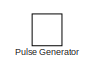
[diagram: root canvas - part 1/2, top left region]
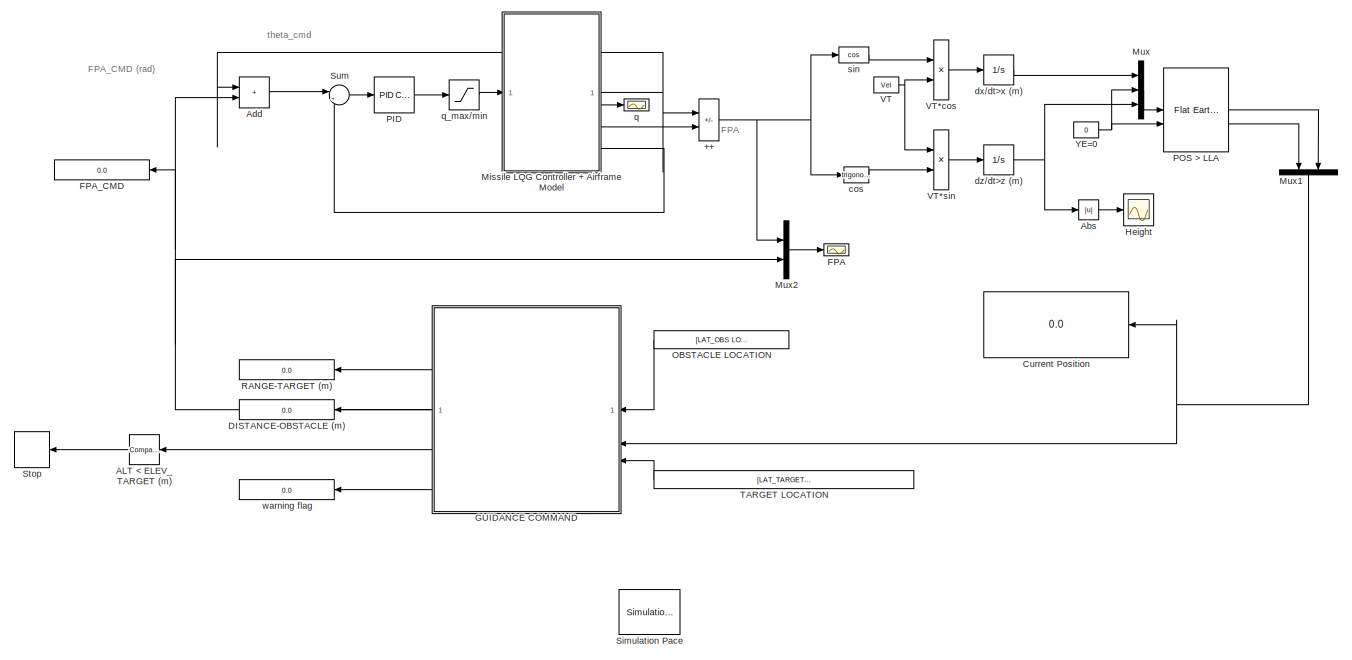
[diagram: root canvas - part 2/2, full width, middle band]
MODEL slx_c7881eeb886f
KIND model
CONFIG AbsTol = auto
CONFIG EnableMultiTasking = on
CONFIG FixedStep = .01
CONFIG MaxStep = auto
CONFIG MinStep = auto
CONFIG RelTol = 1e-3
CONFIG SampleTimeConstraint = Unconstrained
CONFIG SolverName = ode45
CONFIG StartTime = 0.0
CONFIG StopTime = Inf
BLOCK [Sum] ++
  IconShape = rectangular
  Inputs = -+
BLOCK [Reference] ALT < ELEV_TARGET (m)  REF=simulink/Logic and Bit
Operations/Compare
To Constant
  NameLocation = top
  SourceBlock = simulink/Logic and Bit\nOperations/Compare\nTo Constant
  SourceType = Compare To Constant
BLOCK [Abs] Abs
  SaturateOnIntegerOverflow = off
BLOCK [Sum] Add
  IconShape = rectangular
BLOCK [Display] Current Position
  Decimation = 1
  Format = long
  NameLocation = top
BLOCK [Display] DISTANCE-OBSTACLE (m)
  Decimation = 1
  NameLocation = top
BLOCK [Scope] FPA
  Floating = off
  NumInputPorts = 1
  ScopeSpecificationString = Simulink.scopes.TimeScopeBlockCfg('CurrentConfiguration', extmgr.ConfigurationSet(extmgr.Configuration('Core','General UI',true,'FigureColor',[0.313725490196078 0.313725490196078 0.313725490196078]),extmgr.Configuration('Core','Source UI',true),extmgr.Configuration('Sources','WiredSimulink',true,'DataLoggingVariableName','ScopeData4','DataLoggingSaveFormat','Array','DataLoggingDecimation','1','Dat...<+2910ch>
BLOCK [Display] FPA_CMD
  Decimation = 1
  NameLocation = top
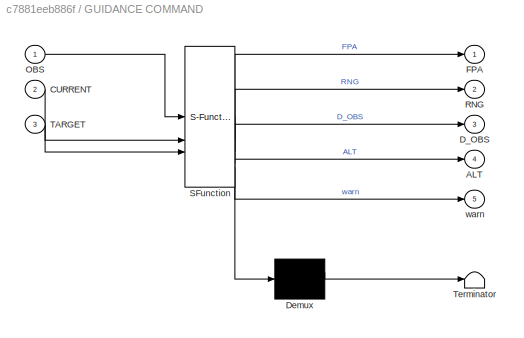
BLOCK [SubSystem] GUIDANCE COMMAND
  ErrorFcn = Stateflow.Translate.translate
  NameLocation = top
  PermitHierarchicalResolution = ExplicitOnly
  SFBlockType = MATLAB Function
  TreatAsAtomicUnit = on
BLOCK [Demux] GUIDANCE COMMAND/ Demux 
  Outputs = 1
BLOCK [S-Function] GUIDANCE COMMAND/ SFunction 
  EnableBusSupport = on
  FunctionName = sf_sfun
  PortCounts = [3 6]
  SFcnIsStateOwnerBlock = off
  SFunctionDeploymentMode = off
  Tag = Stateflow S-Function 1
BLOCK [Terminator] GUIDANCE COMMAND/ Terminator 
BLOCK [Outport] GUIDANCE COMMAND/ALT
  Port = 4
BLOCK [Inport] GUIDANCE COMMAND/CURRENT
  Port = 2
BLOCK [Outport] GUIDANCE COMMAND/D_OBS
  Port = 3
BLOCK [Outport] GUIDANCE COMMAND/FPA
BLOCK [Inport] GUIDANCE COMMAND/OBS
BLOCK [Outport] GUIDANCE COMMAND/RNG
  Port = 2
BLOCK [Inport] GUIDANCE COMMAND/TARGET
  Port = 3
BLOCK [Outport] GUIDANCE COMMAND/warn
  Port = 5
BLOCK [Scope] Height
  Floating = off
  NumInputPorts = 1
  ScopeSpecificationString = Simulink.scopes.TimeScopeBlockCfg('CurrentConfiguration', extmgr.ConfigurationSet(extmgr.Configuration('Core','General UI',true),extmgr.Configuration('Core','Source UI',true),extmgr.Configuration('Sources','WiredSimulink',true,'DataLoggingVariableName','ScopeData2'),extmgr.Configuration('Visuals','Time Domain',true,'SerializedDisplays',{struct('MinYLimReal','654.38257','MaxYLimReal','2060.5569','Y...<+1426ch>
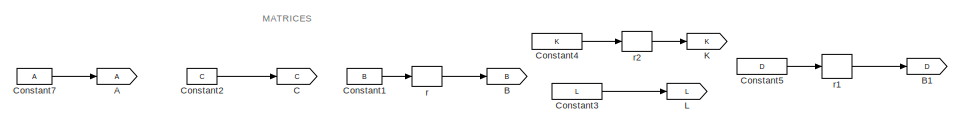
[diagram: Missile LQG Controller + Airframe Model - part 1/4, top center region]
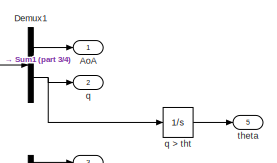
[diagram: Missile LQG Controller + Airframe Model - part 2/4, top right region]
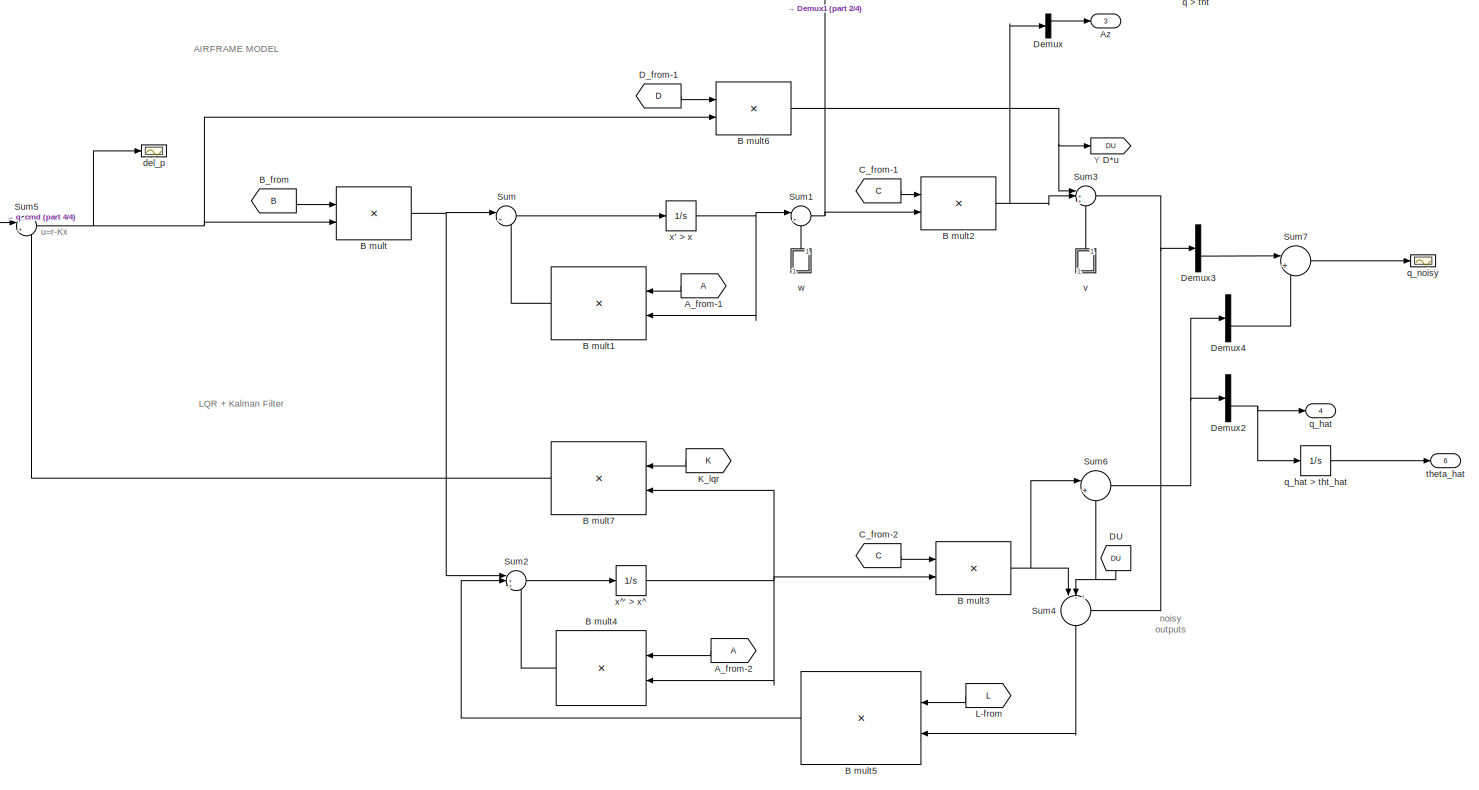
[diagram: Missile LQG Controller + Airframe Model - part 3/4, full width, middle band]
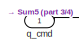
[diagram: Missile LQG Controller + Airframe Model - part 4/4, middle left region]
BLOCK [SubSystem] Missile LQG Controller + Airframe Model
BLOCK [Goto] Missile LQG Controller + Airframe Model/A
BLOCK [From] Missile LQG Controller + Airframe Model/A_from-1
BLOCK [From] Missile LQG Controller + Airframe Model/A_from-2
BLOCK [Outport] Missile LQG Controller + Airframe Model/AoA
BLOCK [Outport] Missile LQG Controller + Airframe Model/Az
  Port = 3
BLOCK [Goto] Missile LQG Controller + Airframe Model/B
  GotoTag = B
BLOCK [Product] Missile LQG Controller + Airframe Model/B mult
  Multiplication = Matrix(*)
  RndMeth = Zero
BLOCK [Product] Missile LQG Controller + Airframe Model/B mult1
  Multiplication = Matrix(*)
  NameLocation = top
  RndMeth = Zero
BLOCK [Product] Missile LQG Controller + Airframe Model/B mult2
  Multiplication = Matrix(*)
  RndMeth = Zero
BLOCK [Product] Missile LQG Controller + Airframe Model/B mult3
  Multiplication = Matrix(*)
  RndMeth = Zero
BLOCK [Product] Missile LQG Controller + Airframe Model/B mult4
  Multiplication = Matrix(*)
  NameLocation = top
  RndMeth = Zero
BLOCK [Product] Missile LQG Controller + Airframe Model/B mult5
  Multiplication = Matrix(*)
  NameLocation = top
  RndMeth = Zero
BLOCK [Product] Missile LQG Controller + Airframe Model/B mult6
  Multiplication = Matrix(*)
  RndMeth = Zero
BLOCK [Product] Missile LQG Controller + Airframe Model/B mult7
  Multiplication = Matrix(*)
  NameLocation = top
  RndMeth = Zero
BLOCK [Goto] Missile LQG Controller + Airframe Model/B1
  GotoTag = D
BLOCK [From] Missile LQG Controller + Airframe Model/B_from
  GotoTag = B
  NameLocation = top
BLOCK [Goto] Missile LQG Controller + Airframe Model/C
  GotoTag = C
BLOCK [From] Missile LQG Controller + Airframe Model/C_from-1
  GotoTag = C
  NameLocation = top
BLOCK [From] Missile LQG Controller + Airframe Model/C_from-2
  GotoTag = C
  NameLocation = top
BLOCK [Constant] Missile LQG Controller + Airframe Model/Constant1
  Value = B
BLOCK [Constant] Missile LQG Controller + Airframe Model/Constant2
  Value = C
BLOCK [Constant] Missile LQG Controller + Airframe Model/Constant3
  Value = L
BLOCK [Constant] Missile LQG Controller + Airframe Model/Constant4
  Value = K
BLOCK [Constant] Missile LQG Controller + Airframe Model/Constant5
  Value = D
BLOCK [Constant] Missile LQG Controller + Airframe Model/Constant7
  Value = A
BLOCK [Goto] Missile LQG Controller + Airframe Model/D*u
  GotoTag = DU
BLOCK [From] Missile LQG Controller + Airframe Model/DU
  GotoTag = DU
  NameLocation = right
BLOCK [From] Missile LQG Controller + Airframe Model/D_from-1
  GotoTag = D
  NameLocation = top
BLOCK [Demux] Missile LQG Controller + Airframe Model/Demux
  Outputs = 2
BLOCK [Demux] Missile LQG Controller + Airframe Model/Demux1
  Outputs = 2
BLOCK [Demux] Missile LQG Controller + Airframe Model/Demux2
  Outputs = 2
BLOCK [Demux] Missile LQG Controller + Airframe Model/Demux3
  Outputs = 2
BLOCK [Demux] Missile LQG Controller + Airframe Model/Demux4
  Outputs = 2
BLOCK [Goto] Missile LQG Controller + Airframe Model/K
  GotoTag = K
BLOCK [From] Missile LQG Controller + Airframe Model/K_lqr
  GotoTag = K
BLOCK [Goto] Missile LQG Controller + Airframe Model/L
  GotoTag = L
BLOCK [From] Missile LQG Controller + Airframe Model/L-from
  GotoTag = L
BLOCK [Sum] Missile LQG Controller + Airframe Model/Sum
  Inputs = |++
BLOCK [Sum] Missile LQG Controller + Airframe Model/Sum1
  Inputs = |++
BLOCK [Sum] Missile LQG Controller + Airframe Model/Sum2
  Inputs = |+++
BLOCK [Sum] Missile LQG Controller + Airframe Model/Sum3
  Inputs = |+++
BLOCK [Sum] Missile LQG Controller + Airframe Model/Sum4
  Inputs = |--+
  NameLocation = left
BLOCK [Sum] Missile LQG Controller + Airframe Model/Sum5
  Inputs = |+-
BLOCK [Sum] Missile LQG Controller + Airframe Model/Sum6
  Inputs = |++
BLOCK [Sum] Missile LQG Controller + Airframe Model/Sum7
  Inputs = |+-
BLOCK [Scope] Missile LQG Controller + Airframe Model/del_p
  Floating = off
  NumInputPorts = 1
  ScopeSpecificationString = C++SS(StrPVP('Location','[2465, 256, 3054, 659]'),StrPVP('Open','off'),MxPVP('AxesTitles',54,'struct(''axes1'',''%<SignalLabel>'')'),MxPVP('ScopeGraphics',57,'struct(''FigureColor'',''[0.313725490196078 0.313725490196078 0.313725490196078]'',''AxesColor'',''[0.247058823529412 0.247058823529412 0.247058823529412]'',''AxesTickColor'',''[1 1 1]'',''LineColors'',''[0 1 0;1 0 1;0 1 1;1 0 0;0 1 0;0 0 1]...<+283ch>
BLOCK [Outport] Missile LQG Controller + Airframe Model/q
  Port = 2
BLOCK [Integrator] Missile LQG Controller + Airframe Model/q > tht
BLOCK [Inport] Missile LQG Controller + Airframe Model/q_cmd
BLOCK [Outport] Missile LQG Controller + Airframe Model/q_hat
  Port = 4
BLOCK [Integrator] Missile LQG Controller + Airframe Model/q_hat > tht_hat
BLOCK [Scope] Missile LQG Controller + Airframe Model/q_noisy
  Floating = off
  NumInputPorts = 1
  ScopeSpecificationString = C++SS(StrPVP('Location','[2465, 256, 3064, 595]'),StrPVP('Open','off'),MxPVP('AxesTitles',54,'struct(''axes1'',''%<SignalLabel>'')'),MxPVP('ScopeGraphics',57,'struct(''FigureColor'',''[0.313725490196078 0.313725490196078 0.313725490196078]'',''AxesColor'',''[0.247058823529412 0.247058823529412 0.247058823529412]'',''AxesTickColor'',''[1 1 1]'',''LineColors'',''[1 1 1;1 0 1;0 1 1;1 0 0;0 1 0;0 0 1]...<+312ch>
BLOCK [Reshape] Missile LQG Controller + Airframe Model/r
  OutputDimensionality = Customize
  OutputDimensions = [2,1]
BLOCK [Reshape] Missile LQG Controller + Airframe Model/r1
  OutputDimensionality = Customize
  OutputDimensions = [2,1]
BLOCK [Reshape] Missile LQG Controller + Airframe Model/r2
  OutputDimensionality = Customize
  OutputDimensions = [1,2]
BLOCK [Outport] Missile LQG Controller + Airframe Model/theta
  Port = 5
BLOCK [Outport] Missile LQG Controller + Airframe Model/theta_hat
  Port = 6
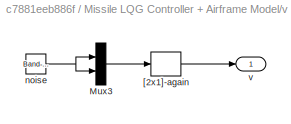
BLOCK [SubSystem] Missile LQG Controller + Airframe Model/v
  NameLocation = right
BLOCK [Mux] Missile LQG Controller + Airframe Model/v/Mux3
  DisplayOption = bar
  Inputs = 2
BLOCK [Reshape] Missile LQG Controller + Airframe Model/v/[2x1]-again
  OutputDimensionality = Customize
  OutputDimensions = [2,1]
BLOCK [Reference] Missile LQG Controller + Airframe Model/v/noise  REF=simulink/Sources/Band-Limited
White Noise
  SourceBlock = simulink/Sources/Band-Limited\nWhite Noise
  SourceType = Band-Limited White Noise.
BLOCK [Outport] Missile LQG Controller + Airframe Model/v/v
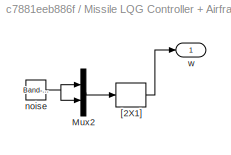
BLOCK [SubSystem] Missile LQG Controller + Airframe Model/w
  NameLocation = right
BLOCK [Mux] Missile LQG Controller + Airframe Model/w/Mux2
  DisplayOption = bar
  Inputs = 2
BLOCK [Reshape] Missile LQG Controller + Airframe Model/w/[2X1]
  OutputDimensionality = Customize
  OutputDimensions = [2,1]
BLOCK [Reference] Missile LQG Controller + Airframe Model/w/noise  REF=simulink/Sources/Band-Limited
White Noise
  SourceBlock = simulink/Sources/Band-Limited\nWhite Noise
  SourceType = Band-Limited White Noise.
BLOCK [Outport] Missile LQG Controller + Airframe Model/w/w
BLOCK [Integrator] Missile LQG Controller + Airframe Model/x' > x
BLOCK [Integrator] Missile LQG Controller + Airframe Model/x^' > x^
  InitialCondition = [0.01;0.01]
BLOCK [Mux] Mux
  DisplayOption = bar
  Inputs = 3
BLOCK [Mux] Mux1
  DisplayOption = bar
  Inputs = 2
  NameLocation = left
BLOCK [Mux] Mux2
  DisplayOption = bar
  Inputs = 2
BLOCK [Constant] OBSTACLE LOCATION
  NameLocation = top
  Value = [LAT_OBS LON_OBS]
BLOCK [Reference] PID  REF=slpidlib/PID Controller
  SourceBlock = slpidlib/PID Controller
  SourceType = PID 1dof
BLOCK [Reference] POS > LLA  REF=aerolibtransform2/Flat Earth to LLA
  SourceBlock = aerolibtransform2/Flat Earth to LLA
  SourceType = Flat Earth to LLA
BLOCK [DiscretePulseGenerator] Pulse Generator
  Amplitude = 0.75
  Commented = on
  Period = 60
  PulseType = Time based
  PulseWidth = 50
BLOCK [Display] RANGE-TARGET (m)
  Decimation = 1
  NameLocation = top
BLOCK [Reference] Simulation Pace  REF=aerolibanimutils/Simulation Pace
  AttributesFormatString = %<SimulationPace> sec/sec
  SourceBlock = aerolibanimutils/Simulation Pace
  SourceType = Simulation Pace
BLOCK [Stop] Stop
  NameLocation = top
BLOCK [Sum] Sum
  Inputs = |+-
BLOCK [Constant] TARGET LOCATION
  NameLocation = top
  Value = [LAT_TARGET LON_TARGET ELEV_TARGET]
BLOCK [Constant] VT
  Value = Vel
BLOCK [Product] VT*cos
BLOCK [Product] VT*sin
BLOCK [Constant] YE=0
  Value = 0
BLOCK [Trigonometry] cos
BLOCK [Integrator] dx//dt>x (m)
BLOCK [Integrator] dz//dt>z (m)
  InitialCondition = -ELEV_INIT
BLOCK [Scope] q
  Floating = off
  NumInputPorts = 1
  ScopeSpecificationString = Simulink.scopes.TimeScopeBlockCfg('CurrentConfiguration', extmgr.ConfigurationSet(extmgr.Configuration('Core','General UI',true,'FigureColor',[0.313725490196078 0.313725490196078 0.313725490196078]),extmgr.Configuration('Core','Source UI',true),extmgr.Configuration('Sources','WiredSimulink',true,'DataLoggingVariableName','ScopeData1','DataLoggingSaveFormat','Array','DataLoggingDecimation','1','Dat...<+2964ch>
BLOCK [Saturate] q_max//min
BLOCK [Trigonometry] sin
  Operator = cos
BLOCK [Display] warning flag
  Decimation = 1
  NameLocation = top
ANNOTATION (root): FPA
ANNOTATION (root): FPA_CMD (rad)
ANNOTATION (root): theta_cmd
ANNOTATION Missile LQG Controller + Airframe Model: noisy outputs
ANNOTATION Missile LQG Controller + Airframe Model: MATRICES
ANNOTATION Missile LQG Controller + Airframe Model: AIRFRAME MODEL
ANNOTATION Missile LQG Controller + Airframe Model: LQR + Kalman Filter
ANNOTATION Missile LQG Controller + Airframe Model: Y
ANNOTATION Missile LQG Controller + Airframe Model: u=r-Kx
NET ++:1 -> Mux2:1, cos:1, sin:1
LINE ALT < ELEV_TARGET (m):1 -> Stop:1
LINE Abs:1 -> Height:1
LINE Add:1 -> Sum:1
NET GUIDANCE COMMAND:1 -> Add:2, FPA_CMD:1, Mux2:2
LINE GUIDANCE COMMAND:2 -> RANGE-TARGET (m):1
LINE GUIDANCE COMMAND:3 -> DISTANCE-OBSTACLE (m):1
LINE GUIDANCE COMMAND:4 -> ALT < ELEV_TARGET (m):1
LINE GUIDANCE COMMAND:5 -> warning flag:1
LINE Missile LQG Controller + Airframe Model/A_from-1:1 -> Missile LQG Controller + Airframe Model/B mult1:1
LINE Missile LQG Controller + Airframe Model/A_from-2:1 -> Missile LQG Controller + Airframe Model/B mult4:1
LINE Missile LQG Controller + Airframe Model/B mult1:1 -> Missile LQG Controller + Airframe Model/Sum:2
NET Missile LQG Controller + Airframe Model/B mult2:1 -> Missile LQG Controller + Airframe Model/Demux:1, Missile LQG Controller + Airframe Model/Sum3:2
NET Missile LQG Controller + Airframe Model/B mult3:1 -> Missile LQG Controller + Airframe Model/Sum4:1, Missile LQG Controller + Airframe Model/Sum6:1
LINE Missile LQG Controller + Airframe Model/B mult4:1 -> Missile LQG Controller + Airframe Model/Sum2:3
LINE Missile LQG Controller + Airframe Model/B mult5:1 -> Missile LQG Controller + Airframe Model/Sum2:2
NET Missile LQG Controller + Airframe Model/B mult6:1 -> Missile LQG Controller + Airframe Model/D*u:1, Missile LQG Controller + Airframe Model/Sum3:1
LINE Missile LQG Controller + Airframe Model/B mult7:1 -> Missile LQG Controller + Airframe Model/Sum5:2
NET Missile LQG Controller + Airframe Model/B mult:1 -> Missile LQG Controller + Airframe Model/Sum2:1, Missile LQG Controller + Airframe Model/Sum:1
LINE Missile LQG Controller + Airframe Model/B_from:1 -> Missile LQG Controller + Airframe Model/B mult:1
LINE Missile LQG Controller + Airframe Model/C_from-1:1 -> Missile LQG Controller + Airframe Model/B mult2:1
LINE Missile LQG Controller + Airframe Model/C_from-2:1 -> Missile LQG Controller + Airframe Model/B mult3:1
LINE Missile LQG Controller + Airframe Model/Constant1:1 -> Missile LQG Controller + Airframe Model/r:1
LINE Missile LQG Controller + Airframe Model/Constant2:1 -> Missile LQG Controller + Airframe Model/C:1
LINE Missile LQG Controller + Airframe Model/Constant3:1 -> Missile LQG Controller + Airframe Model/L:1
LINE Missile LQG Controller + Airframe Model/Constant4:1 -> Missile LQG Controller + Airframe Model/r2:1
LINE Missile LQG Controller + Airframe Model/Constant5:1 -> Missile LQG Controller + Airframe Model/r1:1
LINE Missile LQG Controller + Airframe Model/Constant7:1 -> Missile LQG Controller + Airframe Model/A:1
NET Missile LQG Controller + Airframe Model/DU:1 -> Missile LQG Controller + Airframe Model/Sum4:2, Missile LQG Controller + Airframe Model/Sum6:2
LINE Missile LQG Controller + Airframe Model/D_from-1:1 -> Missile LQG Controller + Airframe Model/B mult6:1
LINE Missile LQG Controller + Airframe Model/Demux1:1 -> Missile LQG Controller + Airframe Model/AoA:1
NET Missile LQG Controller + Airframe Model/Demux1:2 -> Missile LQG Controller + Airframe Model/q > tht:1, Missile LQG Controller + Airframe Model/q:1
NET Missile LQG Controller + Airframe Model/Demux2:2 -> Missile LQG Controller + Airframe Model/q_hat > tht_hat:1, Missile LQG Controller + Airframe Model/q_hat:1
LINE Missile LQG Controller + Airframe Model/Demux3:2 -> Missile LQG Controller + Airframe Model/Sum7:1
LINE Missile LQG Controller + Airframe Model/Demux4:2 -> Missile LQG Controller + Airframe Model/Sum7:2
LINE Missile LQG Controller + Airframe Model/Demux:1 -> Missile LQG Controller + Airframe Model/Az:1
LINE Missile LQG Controller + Airframe Model/K_lqr:1 -> Missile LQG Controller + Airframe Model/B mult7:1
LINE Missile LQG Controller + Airframe Model/L-from:1 -> Missile LQG Controller + Airframe Model/B mult5:1
NET Missile LQG Controller + Airframe Model/Sum1:1 -> Missile LQG Controller + Airframe Model/B mult2:2, Missile LQG Controller + Airframe Model/Demux1:1
LINE Missile LQG Controller + Airframe Model/Sum2:1 -> Missile LQG Controller + Airframe Model/x^' > x^:1
NET Missile LQG Controller + Airframe Model/Sum3:1 -> Missile LQG Controller + Airframe Model/Demux3:1, Missile LQG Controller + Airframe Model/Sum4:3
LINE Missile LQG Controller + Airframe Model/Sum4:1 -> Missile LQG Controller + Airframe Model/B mult5:2
NET Missile LQG Controller + Airframe Model/Sum5:1 -> Missile LQG Controller + Airframe Model/B mult6:2, Missile LQG Controller + Airframe Model/B mult:2, Missile LQG Controller + Airframe Model/del_p:1
NET Missile LQG Controller + Airframe Model/Sum6:1 -> Missile LQG Controller + Airframe Model/Demux2:1, Missile LQG Controller + Airframe Model/Demux4:1
LINE Missile LQG Controller + Airframe Model/Sum7:1 -> Missile LQG Controller + Airframe Model/q_noisy:1
LINE Missile LQG Controller + Airframe Model/Sum:1 -> Missile LQG Controller + Airframe Model/x' > x:1
LINE Missile LQG Controller + Airframe Model/q > tht:1 -> Missile LQG Controller + Airframe Model/theta:1
LINE Missile LQG Controller + Airframe Model/q_cmd:1 -> Missile LQG Controller + Airframe Model/Sum5:1
LINE Missile LQG Controller + Airframe Model/q_hat > tht_hat:1 -> Missile LQG Controller + Airframe Model/theta_hat:1
LINE Missile LQG Controller + Airframe Model/r1:1 -> Missile LQG Controller + Airframe Model/B1:1
LINE Missile LQG Controller + Airframe Model/r2:1 -> Missile LQG Controller + Airframe Model/K:1
LINE Missile LQG Controller + Airframe Model/r:1 -> Missile LQG Controller + Airframe Model/B:1
LINE Missile LQG Controller + Airframe Model/v/Mux3:1 -> Missile LQG Controller + Airframe Model/v/[2x1]-again:1
LINE Missile LQG Controller + Airframe Model/v/[2x1]-again:1 -> Missile LQG Controller + Airframe Model/v/v:1
NET Missile LQG Controller + Airframe Model/v/noise:1 -> Missile LQG Controller + Airframe Model/v/Mux3:1, Missile LQG Controller + Airframe Model/v/Mux3:2
LINE Missile LQG Controller + Airframe Model/v:1 -> Missile LQG Controller + Airframe Model/Sum3:3
LINE Missile LQG Controller + Airframe Model/w/Mux2:1 -> Missile LQG Controller + Airframe Model/w/[2X1]:1
LINE Missile LQG Controller + Airframe Model/w/[2X1]:1 -> Missile LQG Controller + Airframe Model/w/w:1
NET Missile LQG Controller + Airframe Model/w/noise:1 -> Missile LQG Controller + Airframe Model/w/Mux2:1, Missile LQG Controller + Airframe Model/w/Mux2:2
LINE Missile LQG Controller + Airframe Model/w:1 -> Missile LQG Controller + Airframe Model/Sum1:2
NET Missile LQG Controller + Airframe Model/x' > x:1 -> Missile LQG Controller + Airframe Model/B mult1:2, Missile LQG Controller + Airframe Model/Sum1:1
NET Missile LQG Controller + Airframe Model/x^' > x^:1 -> Missile LQG Controller + Airframe Model/B mult3:2, Missile LQG Controller + Airframe Model/B mult4:2, Missile LQG Controller + Airframe Model/B mult7:2
NET Missile LQG Controller + Airframe Model:1 -> ++:1, Add:1
LINE Missile LQG Controller + Airframe Model:4 -> q:1
LINE Missile LQG Controller + Airframe Model:5 -> ++:2
LINE Missile LQG Controller + Airframe Model:6 -> Sum:2
NET Mux1:1 -> Current Position:1, GUIDANCE COMMAND:2
LINE Mux2:1 -> FPA:1
LINE Mux:1 -> POS > LLA:1
LINE OBSTACLE LOCATION:1 -> GUIDANCE COMMAND:1
LINE PID:1 -> q_max//min:1
LINE POS > LLA:1 -> Mux1:2
LINE POS > LLA:2 -> Mux1:1
LINE Sum:1 -> PID:1
LINE TARGET LOCATION:1 -> GUIDANCE COMMAND:3
LINE VT*cos:1 -> dx//dt>x (m):1
LINE VT*sin:1 -> dz//dt>z (m):1
NET VT:1 -> VT*cos:2, VT*sin:1
NET YE=0:1 -> Mux:2, POS > LLA:2
LINE cos:1 -> VT*sin:2
LINE dx//dt>x (m):1 -> Mux:1
NET dz//dt>z (m):1 -> Abs:1, Mux:3
LINE q_max//min:1 -> Missile LQG Controller + Airframe Model:1
LINE sin:1 -> VT*cos:1
note: NET lines group one-source signal fan-out (src -> all destinations, sorted); 1:1 wires keep LINE
CHART GUIDANCE COMMAND states=1 transitions=1
  STATE_LABEL 'eML_blk_kernel()'
  STATE_LABEL 'SCRIPT:\nfunction [FPA,RNG,D_OBS,ALT,warn]= FPA(OBS, CURRENT, TARGET)\n%#codegen\n\nR = 6371e3; %earth radius (m)\nd2r = pi/180;\n\n%OBSTACLE LOCATION\nLAT_OBS = OBS(1);\nLON_OBS = OBS(2);\n\n%OBSTACLE THRESHOLD (m)\nthres = 2000;\n\n%TARGET location\nLAT_TARGET = TARGET(1);\nLON_TARGET = TARGET(2);\nELEV_TARGET = TARGET(3); %m - MSL\n\n%CURRENT location\nLAT_CUR = CURRENT(2);\nLON_CUR = CURRENT(3);\nELEV_CUR = CURRENT...<+954ch>'
CHART  states=0 transitions=0
